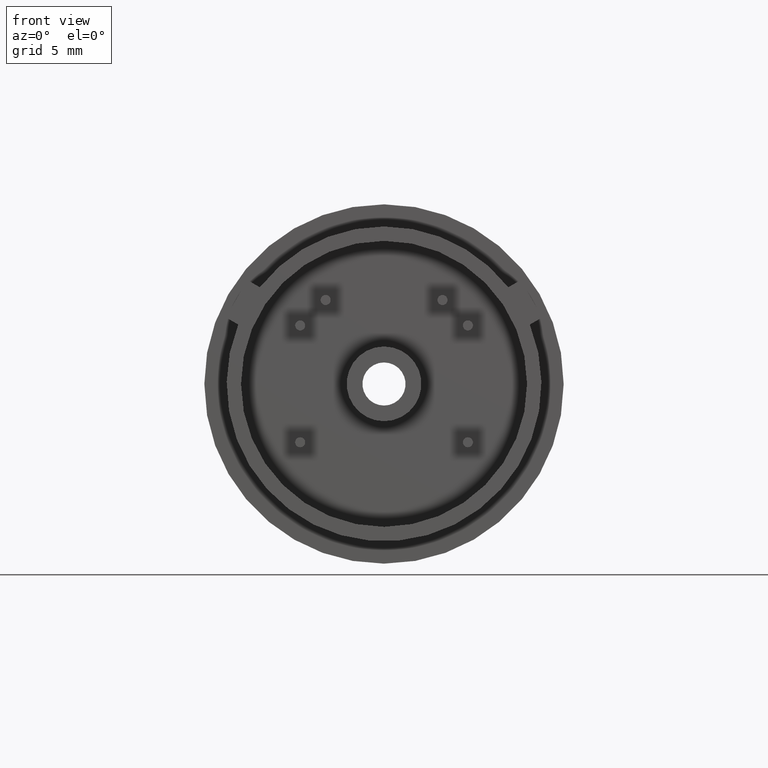
[diagram: clean part render]
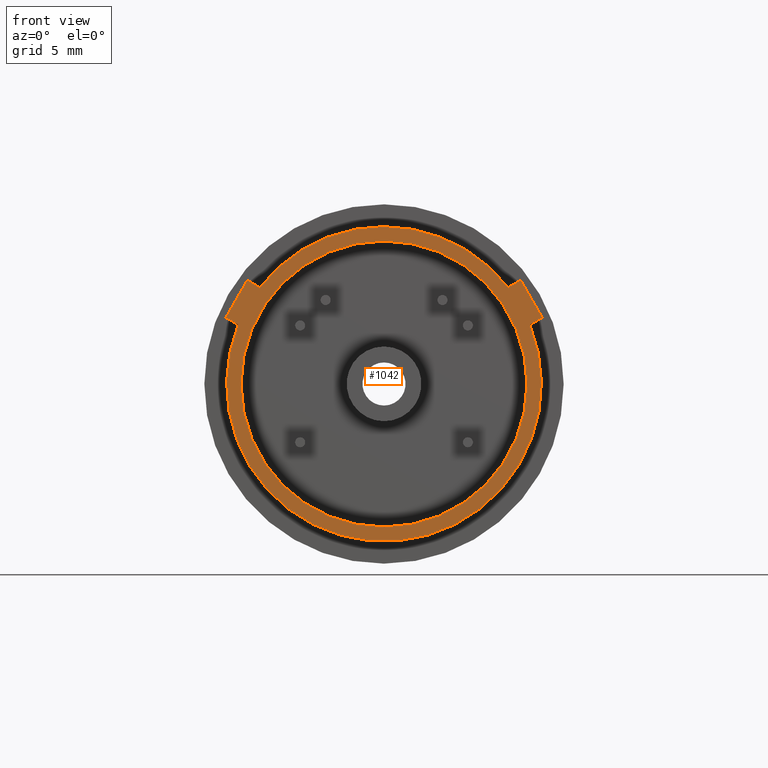
[diagram: same view with one face highlighted and labeled with its STEP entity id]
A machine part, front view. The second image highlights one B-rep face of the part: STEP entity #1042.
In plain terms, the highlighted planar face has unit normal (0, 1, 0).
Its self-contained STEP definition (entity closure, byte-faithful):
#5 = CIRCLE ( 'NONE', #1150, 10.94999999999999900 ) ;
#7 = CARTESIAN_POINT ( 'NONE',  ( 9.509606989101069300, -4.500000000000003600, 7.222424962613899900 ) ) ;
#51 = LINE ( 'NONE', #387, #437 ) ;
#55 = EDGE_CURVE ( 'NONE', #956, #1491, #258, .T. ) ;
#73 = CARTESIAN_POINT ( 'NONE',  ( 8.643581585316663800, -4.500000000000003600, 6.722424962613916800 ) ) ;
#111 = EDGE_LOOP ( 'NONE', ( #601, #1302, #1244, #1410, #564, #1577, #1388, #126, #1158 ) ) ;
#126 = ORIENTED_EDGE ( 'NONE', *, *, #259, .T. ) ;
#144 = CARTESIAN_POINT ( 'NONE',  ( 0.0000000000000000000, -4.500000000000003600, 0.0000000000000000000 ) ) ;
#163 = CIRCLE ( 'NONE', #970, 9.950000000000001100 ) ;
#168 = LINE ( 'NONE', #647, #1780 ) ;
#178 = PLANE ( 'NONE',  #262 ) ;
#203 = DIRECTION ( 'NONE',  ( -0.5000000000000089900, 0.0000000000000000000, 0.8660254037844334900 ) ) ;
#224 = VERTEX_POINT ( 'NONE', #1854 ) ;
#258 = CIRCLE ( 'NONE', #1371, 10.94999999999999900 ) ;
#259 = EDGE_CURVE ( 'NONE', #888, #1058, #1262, .T. ) ;
#262 = AXIS2_PLACEMENT_3D ( 'NONE', #648, #1276, #341 ) ;
#265 = VERTEX_POINT ( 'NONE', #7 ) ;
#308 = DIRECTION ( 'NONE',  ( 0.0000000000000000000, 0.0000000000000000000, -1.000000000000000000 ) ) ;
#340 = CARTESIAN_POINT ( 'NONE',  ( -11.00960698910106600, -4.500000000000003600, 4.624348751260571400 ) ) ;
#341 = DIRECTION ( 'NONE',  ( 0.0000000000000000000, -0.0000000000000000000, 1.000000000000000000 ) ) ;
#387 = CARTESIAN_POINT ( 'NONE',  ( 11.00960698910109800, -4.500000000000003600, 4.624348751260599000 ) ) ;
#436 = AXIS2_PLACEMENT_3D ( 'NONE', #1735, #808, #1895 ) ;
#437 = VECTOR ( 'NONE', #203, 1000.000000000000000 ) ;
#502 = EDGE_CURVE ( 'NONE', #1427, #265, #51, .T. ) ;
#517 = AXIS2_PLACEMENT_3D ( 'NONE', #144, #1247, #308 ) ;
#524 = CARTESIAN_POINT ( 'NONE',  ( 11.00960698910109800, -4.500000000000003600, 4.624348751260599000 ) ) ;
#528 = CARTESIAN_POINT ( 'NONE',  ( -8.643581585316665500, -4.500000000000003600, 6.722424962613910500 ) ) ;
#536 = CARTESIAN_POINT ( 'NONE',  ( 10.14358158531665500, -4.500000000000003600, 4.124348751260602500 ) ) ;
#564 = ORIENTED_EDGE ( 'NONE', *, *, #55, .F. ) ;
#601 = ORIENTED_EDGE ( 'NONE', *, *, #797, .F. ) ;
#622 = CARTESIAN_POINT ( 'NONE',  ( -8.643581585316667300, -4.500000000000003600, 6.722424962613911400 ) ) ;
#624 = CARTESIAN_POINT ( 'NONE',  ( -9.509606989101104800, -4.500000000000003600, 7.222424962613910500 ) ) ;
#647 = CARTESIAN_POINT ( 'NONE',  ( 9.509606989101069300, -4.500000000000003600, 7.222424962613899900 ) ) ;
#648 = CARTESIAN_POINT ( 'NONE',  ( 0.0000000000000000000, -4.500000000000003600, 0.0000000000000000000 ) ) ;
#697 = VECTOR ( 'NONE', #1430, 1000.000000000000100 ) ;
#764 = EDGE_CURVE ( 'NONE', #994, #224, #967, .T. ) ;
#783 = DIRECTION ( 'NONE',  ( 0.0000000000000000000, 1.000000000000000000, 0.0000000000000000000 ) ) ;
#797 = EDGE_CURVE ( 'NONE', #1236, #1949, #5, .T. ) ;
#808 = DIRECTION ( 'NONE',  ( 0.0000000000000000000, 1.000000000000000000, 0.0000000000000000000 ) ) ;
#841 = VERTEX_POINT ( 'NONE', #622 ) ;
#861 = ORIENTED_EDGE ( 'NONE', *, *, #764, .F. ) ;
#878 = DIRECTION ( 'NONE',  ( 0.0000000000000000000, 1.000000000000000000, 0.0000000000000000000 ) ) ;
#884 = EDGE_CURVE ( 'NONE', #1058, #1949, #1051, .T. ) ;
#888 = VERTEX_POINT ( 'NONE', #1275 ) ;
#913 = EDGE_CURVE ( 'NONE', #265, #1491, #168, .T. ) ;
#918 = DIRECTION ( 'NONE',  ( 0.0000000000000000000, -1.000000000000000000, 0.0000000000000000000 ) ) ;
#923 = VECTOR ( 'NONE', #1717, 1000.000000000000100 ) ;
#956 = VERTEX_POINT ( 'NONE', #1290 ) ;
#967 = CIRCLE ( 'NONE', #517, 9.950000000000001100 ) ;
#970 = AXIS2_PLACEMENT_3D ( 'NONE', #1862, #918, #2021 ) ;
#994 = VERTEX_POINT ( 'NONE', #1457 ) ;
#1021 = FACE_OUTER_BOUND ( 'NONE', #111, .T. ) ;
#1035 = DIRECTION ( 'NONE',  ( 0.8660254037844407100, 0.0000000000000000000, 0.4999999999999965600 ) ) ;
#1042 = ADVANCED_FACE ( 'NONE', ( #1130, #1021 ), #178, .F. ) ;
#1051 = LINE ( 'NONE', #340, #697 ) ;
#1058 = VERTEX_POINT ( 'NONE', #1593 ) ;
#1130 = FACE_BOUND ( 'NONE', #1771, .T. ) ;
#1150 = AXIS2_PLACEMENT_3D ( 'NONE', #1714, #783, #1870 ) ;
#1158 = ORIENTED_EDGE ( 'NONE', *, *, #884, .T. ) ;
#1236 = VERTEX_POINT ( 'NONE', #536 ) ;
#1244 = ORIENTED_EDGE ( 'NONE', *, *, #502, .T. ) ;
#1247 = DIRECTION ( 'NONE',  ( 0.0000000000000000000, -1.000000000000000000, 0.0000000000000000000 ) ) ;
#1262 = LINE ( 'NONE', #624, #923 ) ;
#1275 = CARTESIAN_POINT ( 'NONE',  ( -9.509606989101104800, -4.500000000000003600, 7.222424962613910500 ) ) ;
#1276 = DIRECTION ( 'NONE',  ( 0.0000000000000000000, 1.000000000000000000, 0.0000000000000000000 ) ) ;
#1290 = CARTESIAN_POINT ( 'NONE',  ( 0.0000000000000000000, -4.500000000000003600, 10.94999999999999900 ) ) ;
#1302 = ORIENTED_EDGE ( 'NONE', *, *, #1598, .T. ) ;
#1371 = AXIS2_PLACEMENT_3D ( 'NONE', #1813, #878, #1976 ) ;
#1388 = ORIENTED_EDGE ( 'NONE', *, *, #1451, .T. ) ;
#1392 = VECTOR ( 'NONE', #1635, 1000.000000000000200 ) ;
#1410 = ORIENTED_EDGE ( 'NONE', *, *, #913, .T. ) ;
#1427 = VERTEX_POINT ( 'NONE', #524 ) ;
#1430 = DIRECTION ( 'NONE',  ( 0.8660254037844418200, 0.0000000000000000000, -0.4999999999999946200 ) ) ;
#1451 = EDGE_CURVE ( 'NONE', #841, #888, #1855, .T. ) ;
#1457 = CARTESIAN_POINT ( 'NONE',  ( 0.0000000000000000000, -4.500000000000003600, -9.950000000000001100 ) ) ;
#1491 = VERTEX_POINT ( 'NONE', #73 ) ;
#1495 = CIRCLE ( 'NONE', #436, 10.94999999999999900 ) ;
#1517 = CARTESIAN_POINT ( 'NONE',  ( 10.14358158531665500, -4.500000000000003600, 4.124348751260602500 ) ) ;
#1570 = VECTOR ( 'NONE', #1035, 1000.000000000000100 ) ;
#1577 = ORIENTED_EDGE ( 'NONE', *, *, #1840, .F. ) ;
#1593 = CARTESIAN_POINT ( 'NONE',  ( -11.00960698910106600, -4.500000000000003600, 4.624348751260571400 ) ) ;
#1598 = EDGE_CURVE ( 'NONE', #1236, #1427, #1981, .T. ) ;
#1601 = DIRECTION ( 'NONE',  ( -0.8660254037844378200, 0.0000000000000000000, -0.5000000000000013300 ) ) ;
#1635 = DIRECTION ( 'NONE',  ( -0.8660254037844389300, 0.0000000000000000000, 0.4999999999999993300 ) ) ;
#1646 = CARTESIAN_POINT ( 'NONE',  ( -10.14358158531665700, -4.500000000000003600, 4.124348751260595400 ) ) ;
#1714 = CARTESIAN_POINT ( 'NONE',  ( 0.0000000000000000000, -4.500000000000003600, 0.0000000000000000000 ) ) ;
#1717 = DIRECTION ( 'NONE',  ( -0.4999999999999870700, 0.0000000000000000000, -0.8660254037844461500 ) ) ;
#1735 = CARTESIAN_POINT ( 'NONE',  ( 0.0000000000000000000, -4.500000000000003600, 0.0000000000000000000 ) ) ;
#1739 = EDGE_CURVE ( 'NONE', #224, #994, #163, .T. ) ;
#1771 = EDGE_LOOP ( 'NONE', ( #861, #1866 ) ) ;
#1780 = VECTOR ( 'NONE', #1601, 1000.000000000000100 ) ;
#1813 = CARTESIAN_POINT ( 'NONE',  ( 0.0000000000000000000, -4.500000000000003600, 0.0000000000000000000 ) ) ;
#1840 = EDGE_CURVE ( 'NONE', #841, #956, #1495, .T. ) ;
#1854 = CARTESIAN_POINT ( 'NONE',  ( 1.218523565151616600E-015, -4.500000000000003600, 9.950000000000001100 ) ) ;
#1855 = LINE ( 'NONE', #528, #1392 ) ;
#1862 = CARTESIAN_POINT ( 'NONE',  ( 0.0000000000000000000, -4.500000000000003600, 0.0000000000000000000 ) ) ;
#1866 = ORIENTED_EDGE ( 'NONE', *, *, #1739, .F. ) ;
#1870 = DIRECTION ( 'NONE',  ( 0.0000000000000000000, 0.0000000000000000000, 1.000000000000000000 ) ) ;
#1895 = DIRECTION ( 'NONE',  ( 0.0000000000000000000, 0.0000000000000000000, 1.000000000000000000 ) ) ;
#1949 = VERTEX_POINT ( 'NONE', #1646 ) ;
#1976 = DIRECTION ( 'NONE',  ( 0.0000000000000000000, 0.0000000000000000000, 1.000000000000000000 ) ) ;
#1981 = LINE ( 'NONE', #1517, #1570 ) ;
#2021 = DIRECTION ( 'NONE',  ( 0.0000000000000000000, 0.0000000000000000000, -1.000000000000000000 ) ) ;